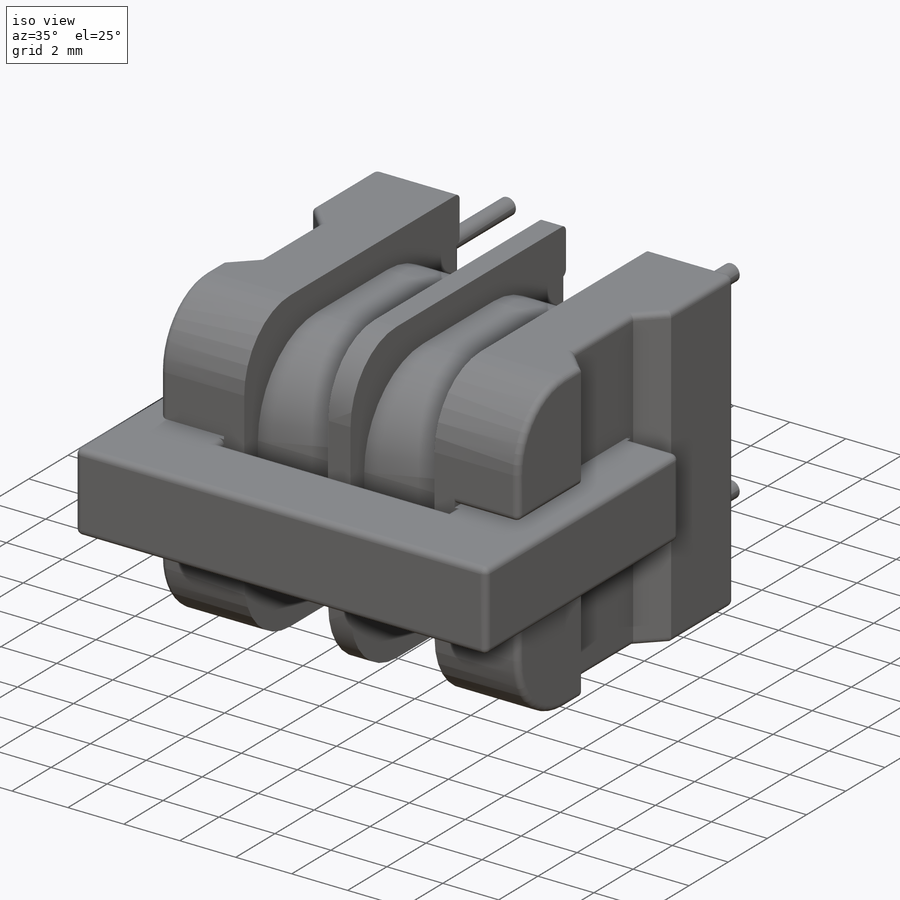
[diagram: iso view]
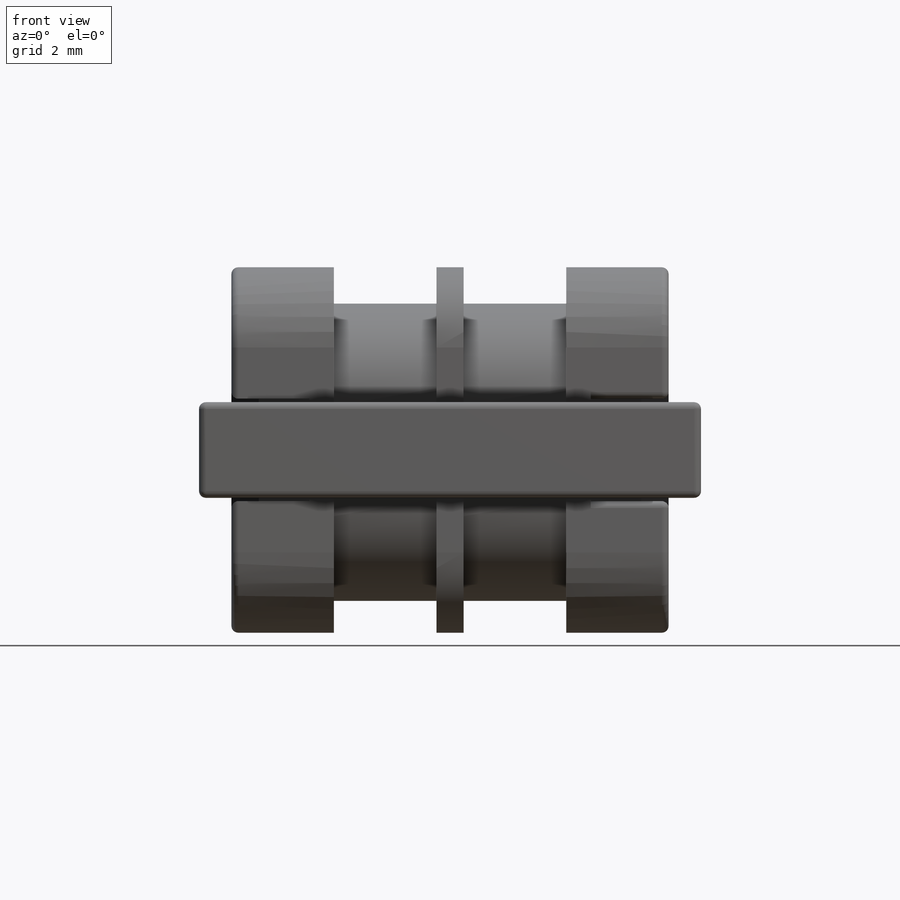
[diagram: front view]
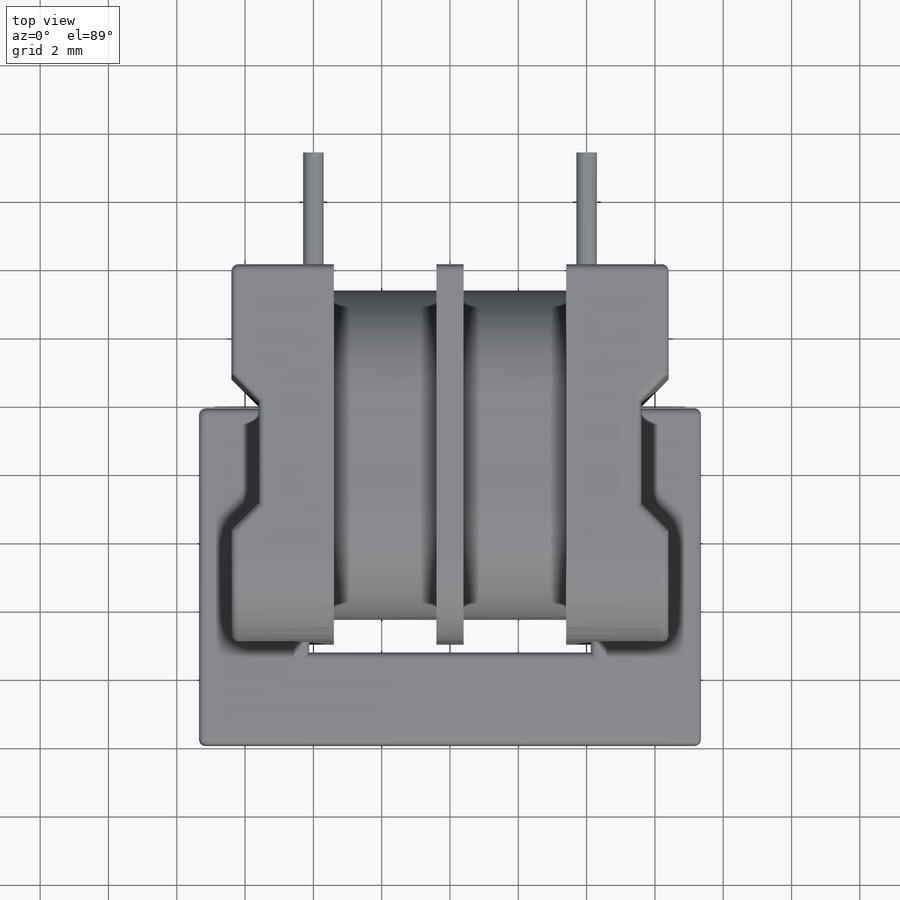
[diagram: top view]
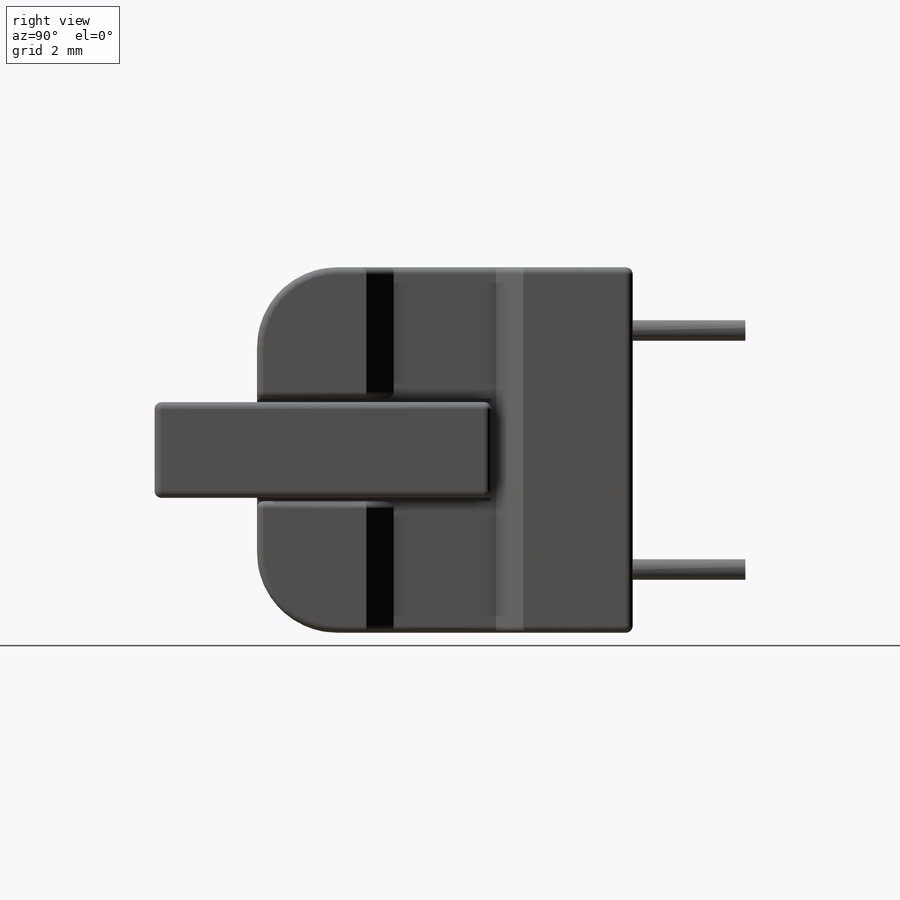
[diagram: right view]
SOLIDWORKS PART (.sldprt)
format: sldprt  version: not decoded by parser v0  size: 807,424 bytes
history: native  units: mm
features: sketch x12, cut_extrude x8, fillet x4, extrude x2, material x1, sweep x1 (+12 scaffold rows collapsed)
feature tree (40):
  scaffold x12  (default folders/planes/origin — collapsed)
  material  "C (Graphite)"
  sketch  "Sketch1"  dims[c1.D1=10.5mm c1.D2=14.7mm c2.D1=10.7mm c2.D2=14.7mm]
  extrude  "Boss-Extrude1"  Depth=14mm
  sketch  "Sketch2"  dims[c1.D1=3.0mm c1.D3=1.0mm c2.D1=~5.785844mm c2.D2=9.0mm c2.D3=5.5mm]
  sketch  "Sketch3"  dims[c1.D1=~0.360254mm c1.D2=~1.881604mm c2.D1=~0.977832mm c2.D2=~2.676172mm c3.D1=~0.977832mm c3.D2=~2.624707mm c4.D1=3.0mm c4.D2=0.8mm c4.D3=2.8mm c4.D4=1.0mm c5.D3=2.7mm]
  sweep  "Cut-Sweep1"
  sketch  "Sketch4"  dims[c1.D1=~3.194648mm c1.D2=14.7mm c2.D1=4.1878mm c2.D2=14.7mm c3.D1=2.8mm]
  cut_extrude  "Cut-Extrude1"  Depth=3mm
  fillet  "Fillet1"  Radius=2.35mm
  fillet  "Fillet2"  Radius=0.2mm
  sketch  "Sketch5"  dims[c1.D1=~2.641363mm c1.D2=~4.264378mm c2.D1=~1.511447mm c2.D2=~3.003795mm c3.D1=~1.511447mm c3.D2=~2.98975mm c4.D1=~1.62775mm c4.D2=~3.003795mm c5.D1=~1.62775mm c5.D2=~2.98975mm c6.D1=~1.435998mm c6.D2=~2.056812mm c7.D1=~1.354816mm c7.D2=~2.301583mm c8.D1=~1.435998mm c8.D2=~2.041514mm c9.D1=~1.354816mm c9.D2=~2.194496mm c10.D1=12.8mm c10.D2=2.7mm]
  cut_extrude  "Cut-Extrude2"  [1 undecoded]
  sketch  "Sketch6"  dims[c1.D1=2.35mm c1.D2=3.0mm c2.D1=2.35mm c2.D2=~3.003795mm c3.D1=2.35mm c3.D2=3.0mm c4.D1=~2.390981mm c4.D2=~3.003795mm]
  cut_extrude  "Cut-Extrude3"  Depth=1mm
  sketch  "Sketch7"  dims[c1.D1=2.35mm c1.D2=~3.003795mm c2.D1=2.35mm c2.D2=~3.003795mm c3.D1=~0.328294mm c3.D2=~0.298449mm c4.D1=2.35mm c4.D2=~3.003795mm c5.D1=2.35mm c5.D2=~3.003795mm]
  cut_extrude  "Cut-Extrude4"  Depth=1mm
  sketch  "Sketch8"  dims[D1=4.6mm D2=3.0mm D3=~0.373858mm]
  cut_extrude  "Cut-Extrude5"  [1 undecoded]
  sketch  "Sketch9"  dims[D1=~3.33765mm]
  cut_extrude  "Cut-Extrude6"  [1 undecoded]
  sketch  "Sketch10"  dims[c1.D1=~0.32253mm c1.D2=~10.037674mm c2.D1=8.24mm c2.D2=2.7mm]
  cut_extrude  "Cut-Extrude7"  [1 undecoded]
  sketch  "Sketch11"  dims[c1.D1=~0.247244mm c1.D2=~3.679356mm c2.D1=~0.287538mm c2.D2=~3.679356mm c3.D1=~0.247244mm c3.D2=~3.431978mm c4.D1=~0.143769mm c4.D2=~3.431978mm c5.D1=0.1mm]
  cut_extrude  "Cut-Extrude8"  [1 undecoded]
  fillet  "Fillet3"  Radius=0.2mm
  fillet  "Fillet4"  Radius=3mm
  sketch  "Sketch16"  dims[c1.D3=0.6mm c1.D1=8.0mm c1.D2=7.0mm c2.D3=~1.761041mm]
  extrude  "Boss-Extrude2"  Depth=1mm
decode coverage: 21 of 27 modeling features carry decoded parameters
note: ~ marks probable driven/reference dimensions
note: 5 parameter values undecoded
summary: no parameter record found for 5 features
note: suppression state not decoded; provenance and decode notes live in map.json
